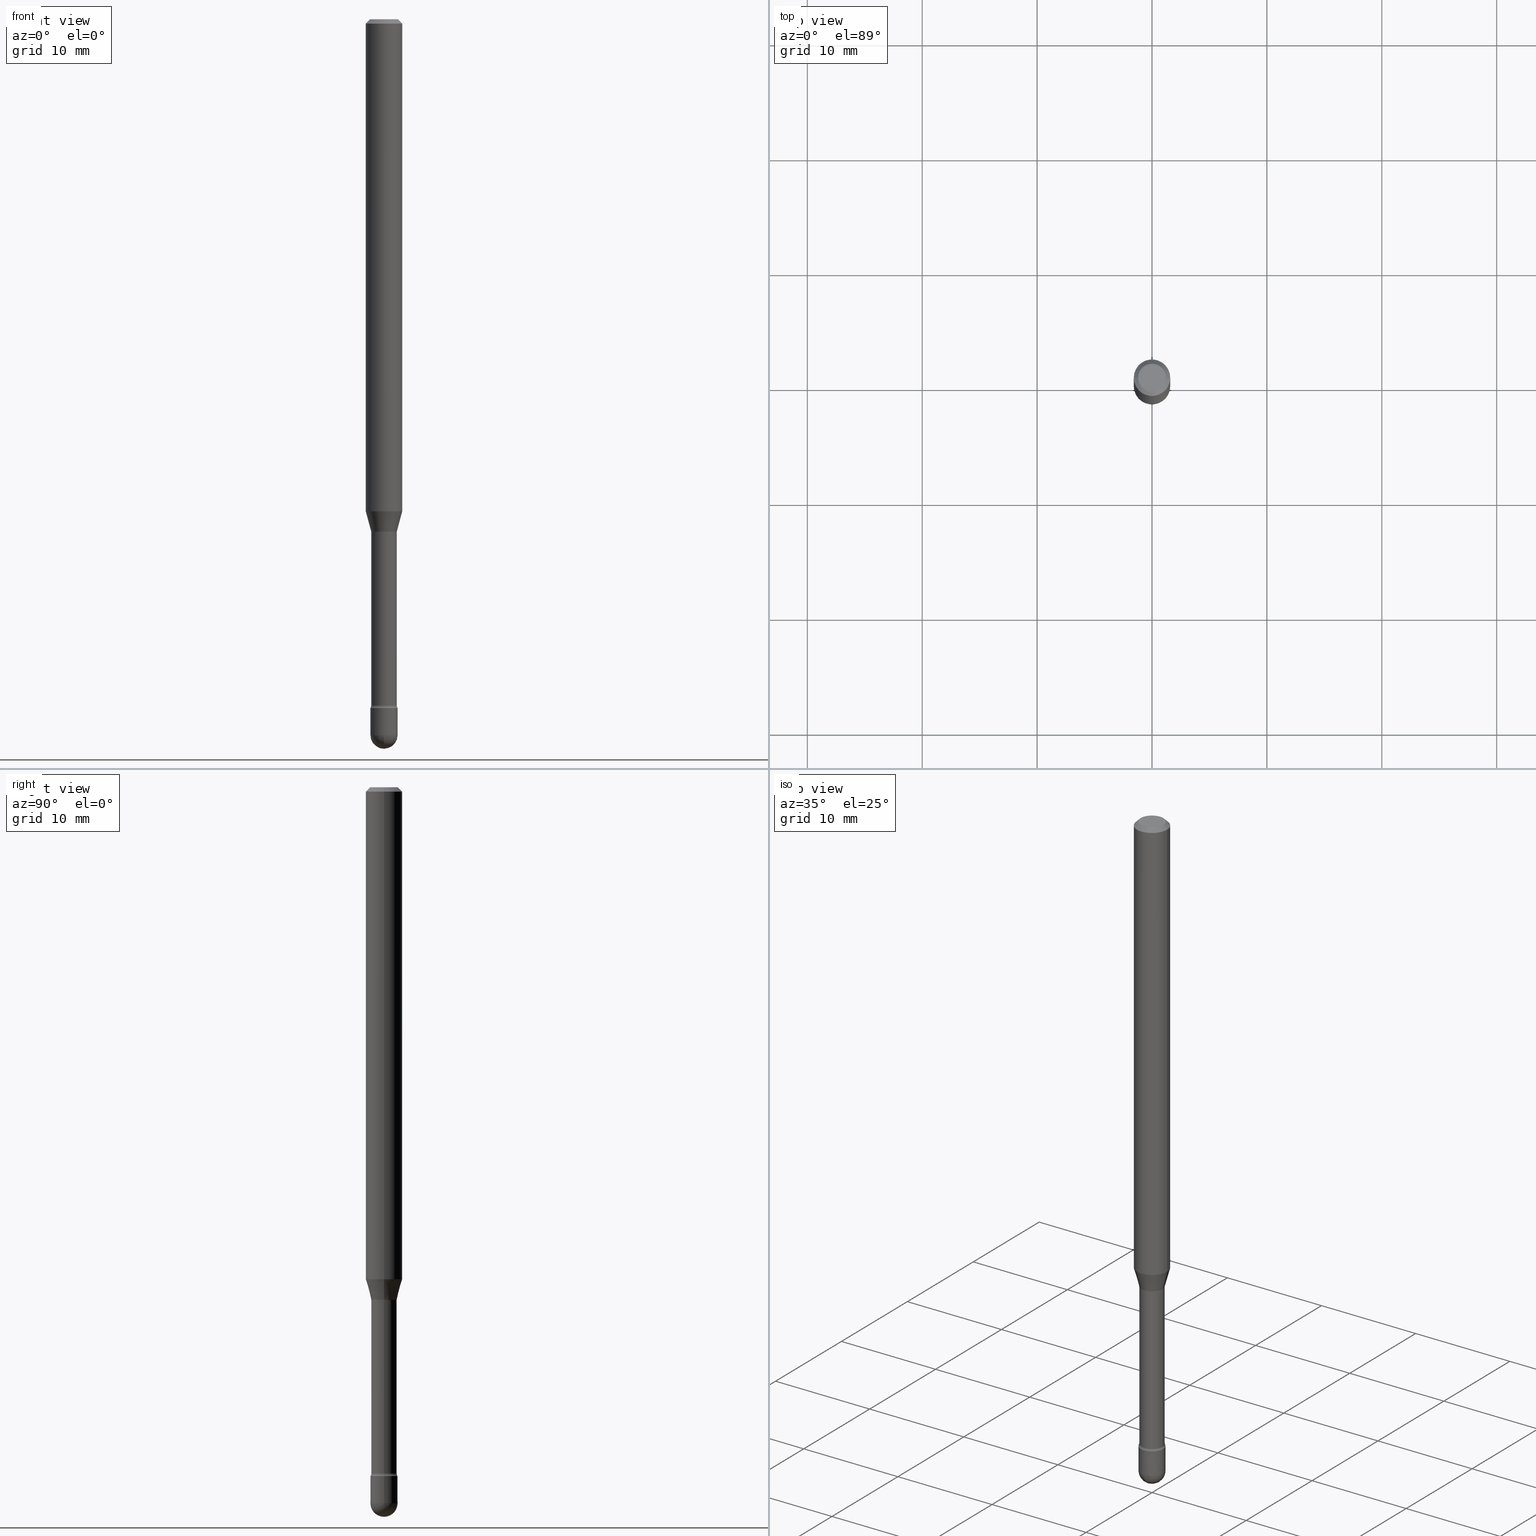
[diagram: canonical four-view strip — front | top / right | iso, engineering-drawing reading convention]
A machine part, canonical four-view strip (front | top / right | iso — engineering-drawing reading convention). The complete STEP part file that produces these views, byte-faithful:
ISO-10303-21;
HEADER;
FILE_DESCRIPTION (( 'STEP AP203' ),
    '1' );
FILE_NAME ('09559.STEP',
    '2024-04-10T00:43:55',
    ( '' ),
    ( '' ),
    'SwSTEP 2.0',
    'SolidWorks 2023',
    '' );
FILE_SCHEMA (( 'CONFIG_CONTROL_DESIGN' ));
ENDSEC;

DATA;
#1 = CIRCLE ( 'NONE', #83, 0.04370000000000000273 ) ;
#2 = AXIS2_PLACEMENT_3D ( 'NONE', #340, #100, #208 ) ;
#3 =( LENGTH_UNIT ( ) NAMED_UNIT ( * ) SI_UNIT ( $, .METRE. ) );
#4 = DIRECTION ( 'NONE',  ( -0.2588190451025213501, 5.211531920934551042E-15, 0.9659258262890682012 ) ) ;
#5 = DIRECTION ( 'NONE',  ( -2.445468806185136877E-29, 3.491481338843145188E-15, 1.000000000000000000 ) ) ;
#6 =( NAMED_UNIT ( * ) PLANE_ANGLE_UNIT ( ) SI_UNIT ( $, .RADIAN. ) );
#7 = DIRECTION ( 'NONE',  ( 1.000000000000000000, -6.982962677686271444E-15, 0.000000000000000000 ) ) ;
#8 = AXIS2_PLACEMENT_3D ( 'NONE', #351, #261, #257 ) ;
#9 = CARTESIAN_POINT ( 'NONE',  ( 0.06250000000000000000, -4.888073874380391431E-16, -0.01500000000000008271 ) ) ;
#10 = DIRECTION ( 'NONE',  ( 1.000000000000000000, -6.982962677686266711E-15, 4.852736867747366207E-29 ) ) ;
#11 = ORIENTED_EDGE ( 'NONE', *, *, #174, .T. ) ;
#12 = APPROVAL_ROLE ( '' ) ;
#13 = EDGE_CURVE ( 'NONE', #542, #25, #36, .T. ) ;
#14 = FACE_OUTER_BOUND ( 'NONE', #120, .T. ) ;
#15 = PERSON_AND_ORGANIZATION ( #377, #63 ) ;
#16 = FACE_OUTER_BOUND ( 'NONE', #164, .T. ) ;
#17 = ORIENTED_EDGE ( 'NONE', *, *, #90, .F. ) ;
#18 = AXIS2_PLACEMENT_3D ( 'NONE', #30, #506, #262 ) ;
#19 = ORIENTED_EDGE ( 'NONE', *, *, #13, .F. ) ;
#20 = CARTESIAN_POINT ( 'NONE',  ( 5.771306382596922099E-29, -8.239895959669823433E-15, -2.359999999999999876 ) ) ;
#21 = DATE_AND_TIME ( #103, #72 ) ;
#22 = FACE_OUTER_BOUND ( 'NONE', #107, .T. ) ;
#23 = EDGE_CURVE ( 'NONE', #381, #488, #504, .T. ) ;
#24 = DIRECTION ( 'NONE',  ( 1.000000000000000000, -6.982962677686272233E-15, 4.883557194083115143E-29 ) ) ;
#25 = VERTEX_POINT ( 'NONE', #429 ) ;
#26 = ORIENTED_EDGE ( 'NONE', *, *, #160, .F. ) ;
#27 = CARTESIAN_POINT ( 'NONE',  ( 0.06250000000000000000, -4.811533449433681963E-16, -0.01500000000000008271 ) ) ;
#28 = CIRCLE ( 'NONE', #350, 0.04749999999999999362 ) ;
#29 = EDGE_CURVE ( 'NONE', #223, #136, #531, .T. ) ;
#30 = CARTESIAN_POINT ( 'NONE',  ( 4.299072504802695232E-29, -6.137936164586641226E-15, -1.757974787463811195 ) ) ;
#31 = ORIENTED_EDGE ( 'NONE', *, *, #362, .F. ) ;
#32 = CARTESIAN_POINT ( 'NONE',  ( -0.04749999999999999362, 3.578768372314208041E-16, -8.274703207154778150E-17 ) ) ;
#33 = ADVANCED_FACE ( 'NONE', ( #301 ), #135, .T. ) ;
#34 = ORIENTED_EDGE ( 'NONE', *, *, #378, .F. ) ;
#35 = LOCAL_TIME ( 20, 43, 55.00000000000000000, #293 ) ;
#36 = CIRCLE ( 'NONE', #73, 0.04370000000000009294 ) ;
#37 = CIRCLE ( 'NONE', #137, 0.04649999999999999967 ) ;
#38 = DIRECTION ( 'NONE',  ( 1.000000000000000000, -6.982962677686271444E-15, 0.000000000000000000 ) ) ;
#39 = LINE ( 'NONE', #140, #505 ) ;
#40 = ORIENTED_EDGE ( 'NONE', *, *, #445, .T. ) ;
#41 = AXIS2_PLACEMENT_3D ( 'NONE', #453, #425, #157 ) ;
#42 = VECTOR ( 'NONE', #343, 39.37007874015748143 ) ;
#43 = CARTESIAN_POINT ( 'NONE',  ( -0.04421111260566398804, -5.810242387576687028E-15, -1.754092501787273273 ) ) ;
#44 = DIRECTION ( 'NONE',  ( -2.445468806185136597E-29, 3.491481338843145583E-15, 1.000000000000000000 ) ) ;
#45 = EDGE_CURVE ( 'NONE', #344, #462, #359, .T. ) ;
#46 = VERTEX_POINT ( 'NONE', #176 ) ;
#47 = MECHANICAL_CONTEXT ( 'NONE', #207, 'mechanical' ) ;
#48 = CARTESIAN_POINT ( 'NONE',  ( 5.999957715975233376E-29, -8.566349464851658011E-15, -2.453500000000000014 ) ) ;
#49 = DIRECTION ( 'NONE',  ( 1.000000000000000000, -6.982962677686267499E-15, 4.884662768193073002E-29 ) ) ;
#50 = AXIS2_PLACEMENT_3D ( 'NONE', #566, #182, #357 ) ;
#51 = CALENDAR_DATE ( 2024, 9, 4 ) ;
#52 = CIRCLE ( 'NONE', #116, 0.01499999999999991618 ) ;
#53 = AXIS2_PLACEMENT_3D ( 'NONE', #346, #476, #510 ) ;
#54 = DIRECTION ( 'NONE',  ( 1.000000000000000000, -6.982962677686266711E-15, 4.852736867747366207E-29 ) ) ;
#55 = ORIENTED_EDGE ( 'NONE', *, *, #268, .T. ) ;
#56 = EDGE_CURVE ( 'NONE', #422, #46, #431, .T. ) ;
#57 = DIRECTION ( 'NONE',  ( 1.000000000000000000, -6.982962677686260400E-15, 0.000000000000000000 ) ) ;
#58 = DIRECTION ( 'NONE',  ( 1.000000000000000000, -6.982962677686266711E-15, 4.858289198259657046E-29 ) ) ;
#59 = PERSON_AND_ORGANIZATION_ROLE ( 'classification_officer' ) ;
#60 = CYLINDRICAL_SURFACE ( 'NONE', #41, 0.04370000000000005130 ) ;
#61 = VERTEX_POINT ( 'NONE', #545 ) ;
#62 = APPROVAL_ROLE ( '' ) ;
#63 = ORGANIZATION ( 'UNSPECIFIED', 'UNSPECIFIED', '' ) ;
#64 = DIRECTION ( 'NONE',  ( 1.000000000000000000, -6.982962677686265922E-15, 4.876176775795935793E-29 ) ) ;
#65 = AXIS2_PLACEMENT_3D ( 'NONE', #285, #191, #49 ) ;
#66 = VECTOR ( 'NONE', #307, 39.37007874015748143 ) ;
#67 = DIRECTION ( 'NONE',  ( 1.000000000000000000, -6.982962677686267499E-15, 4.884662768193073002E-29 ) ) ;
#68 = DIRECTION ( 'NONE',  ( 1.000000000000000000, -6.982962677686260400E-15, 0.000000000000000000 ) ) ;
#69 = ORIENTED_EDGE ( 'NONE', *, *, #56, .F. ) ;
#70 = DIRECTION ( 'NONE',  ( -2.445468806185136597E-29, 3.491481338843145583E-15, 1.000000000000000000 ) ) ;
#71 = DIRECTION ( 'NONE',  ( 1.000000000000000000, -6.982962677686260400E-15, 0.000000000000000000 ) ) ;
#72 = LOCAL_TIME ( 20, 43, 55.00000000000000000, #450 ) ;
#73 = AXIS2_PLACEMENT_3D ( 'NONE', #125, #452, #7 ) ;
#74 = ORIENTED_EDGE ( 'NONE', *, *, #167, .F. ) ;
#75 = AXIS2_PLACEMENT_3D ( 'NONE', #109, #192, #64 ) ;
#76 = ORIENTED_EDGE ( 'NONE', *, *, #555, .T. ) ;
#77 = AXIS2_PLACEMENT_3D ( 'NONE', #338, #281, #241 ) ;
#78 = ORIENTED_EDGE ( 'NONE', *, *, #131, .T. ) ;
#79 = DIRECTION ( 'NONE',  ( 1.000000000000000000, -6.982962677686266711E-15, 0.000000000000000000 ) ) ;
#80 = ORIENTED_EDGE ( 'NONE', *, *, #56, .T. ) ;
#81 = CARTESIAN_POINT ( 'NONE',  ( 5.749964850443326902E-29, -8.209425907846575104E-15, -2.351273030308291823 ) ) ;
#82 = DIRECTION ( 'NONE',  ( 1.000000000000000000, -6.982962677686262766E-15, 0.000000000000000000 ) ) ;
#83 = AXIS2_PLACEMENT_3D ( 'NONE', #288, #179, #264 ) ;
#84 = VERTEX_POINT ( 'NONE', #451 ) ;
#85 = CIRCLE ( 'NONE', #458, 0.06250000000000000000 ) ;
#86 = CARTESIAN_POINT ( 'NONE',  ( 5.999957715975233376E-29, -8.566349464851658011E-15, -2.453500000000000014 ) ) ;
#87 = ADVANCED_FACE ( 'NONE', ( #256 ), #168, .T. ) ;
#88 = ORIENTED_EDGE ( 'NONE', *, *, #539, .F. ) ;
#89 = ORIENTED_EDGE ( 'NONE', *, *, #23, .F. ) ;
#90 = EDGE_CURVE ( 'NONE', #544, #61, #1, .T. ) ;
#91 = LENGTH_MEASURE_WITH_UNIT ( LENGTH_MEASURE( 0.02539999999999999897 ), #3 );
#92 = LOCAL_TIME ( 20, 43, 55.00000000000000000, #460 ) ;
#93 = AXIS2_PLACEMENT_3D ( 'NONE', #367, #146, #54 ) ;
#94 = CC_DESIGN_PERSON_AND_ORGANIZATION_ASSIGNMENT ( #417, #97, ( #134 ) ) ;
#95 = LINE ( 'NONE', #318, #470 ) ;
#96 = ORIENTED_EDGE ( 'NONE', *, *, #352, .F. ) ;
#97 = PERSON_AND_ORGANIZATION_ROLE ( 'creator' ) ;
#98 = ORIENTED_EDGE ( 'NONE', *, *, #309, .F. ) ;
#99 = COORDINATED_UNIVERSAL_TIME_OFFSET ( 5, 0, .BEHIND. ) ;
#100 = DIRECTION ( 'NONE',  ( -1.000000000000000000, 6.982962677686265922E-15, -4.883557194083111780E-29 ) ) ;
#101 = ORIENTED_EDGE ( 'NONE', *, *, #319, .F. ) ;
#102 = APPROVAL ( #201, 'UNSPECIFIED' ) ;
#103 = CALENDAR_DATE ( 2024, 9, 4 ) ;
#104 = AXIS2_PLACEMENT_3D ( 'NONE', #387, #553, #141 ) ;
#105 = TOROIDAL_SURFACE ( 'NONE', #142, 0.05870000000000000218, 0.01500000000000002373 ) ;
#106 = PLANE ( 'NONE',  #75 ) ;
#107 = EDGE_LOOP ( 'NONE', ( #172, #40, #31, #96 ) ) ;
#108 = PERSON_AND_ORGANIZATION ( #377, #63 ) ;
#109 = CARTESIAN_POINT ( 'NONE',  ( 5.771306382596922099E-29, -8.239895959669823433E-15, -2.359999999999999876 ) ) ;
#110 = ORIENTED_EDGE ( 'NONE', *, *, #29, .T. ) ;
#111 = EDGE_CURVE ( 'NONE', #84, #436, #296, .T. ) ;
#112 = CALENDAR_DATE ( 2024, 9, 4 ) ;
#113 = CARTESIAN_POINT ( 'NONE',  ( 0.04421111260566398804, -6.433105785859287344E-15, -1.754092501787273273 ) ) ;
#114 = ADVANCED_FACE ( 'NONE', ( #408 ), #252, .T. ) ;
#115 = DIRECTION ( 'NONE',  ( 1.000000000000000000, -6.982962677686263555E-15, 0.000000000000000000 ) ) ;
#116 = AXIS2_PLACEMENT_3D ( 'NONE', #537, #240, #533 ) ;
#117 = CIRCLE ( 'NONE', #202, 0.04649999999999999967 ) ;
#118 = ORIENTED_EDGE ( 'NONE', *, *, #23, .T. ) ;
#119 = DIRECTION ( 'NONE',  ( 2.438088387897960049E-29, -3.491481338843145188E-15, -1.000000000000000000 ) ) ;
#120 = EDGE_LOOP ( 'NONE', ( #456, #76, #521, #69 ) ) ;
#121 = CARTESIAN_POINT ( 'NONE',  ( 4.289578496284022490E-29, -6.124381236594950640E-15, -1.754092501787273273 ) ) ;
#122 = EDGE_CURVE ( 'NONE', #25, #136, #52, .T. ) ;
#123 = DIRECTION ( 'NONE',  ( -2.445468806185136597E-29, 3.491481338843145583E-15, 1.000000000000000000 ) ) ;
#124 = AXIS2_PLACEMENT_3D ( 'NONE', #411, #291, #10 ) ;
#125 = CARTESIAN_POINT ( 'NONE',  ( 5.749964850443326902E-29, -8.209425907846575104E-15, -2.351273030308291823 ) ) ;
#126 = CARTESIAN_POINT ( 'NONE',  ( 3.668203209277725232E-31, -5.237222008264747365E-17, -0.01500000000000008271 ) ) ;
#127 = VERTEX_POINT ( 'NONE', #418 ) ;
#128 = VERTEX_POINT ( 'NONE', #541 ) ;
#129 = PRODUCT ( '09559', '09559', '', ( #47 ) ) ;
#130 = EDGE_LOOP ( 'NONE', ( #492, #19, #148, #110 ) ) ;
#131 = EDGE_CURVE ( 'NONE', #61, #544, #439, .T. ) ;
#132 = DIRECTION ( 'NONE',  ( -2.445468806185136597E-29, 3.491481338843145583E-15, 1.000000000000000000 ) ) ;
#133 = DIRECTION ( 'NONE',  ( 1.000000000000000000, -6.982962677686263555E-15, 0.000000000000000000 ) ) ;
#134 = PRODUCT_DEFINITION ( 'UNKNOWN', '', #373, #156 ) ;
#135 = CONICAL_SURFACE ( 'NONE', #104, 0.04421111260566398804, 0.2617993877991500740 ) ;
#136 = VERTEX_POINT ( 'NONE', #376 ) ;
#137 = AXIS2_PLACEMENT_3D ( 'NONE', #535, #210, #433 ) ;
#138 = CARTESIAN_POINT ( 'NONE',  ( 0.04370000000000005130, -3.051554690148885367E-16, 4.780733988912481833E-16 ) ) ;
#139 = ADVANCED_FACE ( 'NONE', ( #282 ), #60, .T. ) ;
#140 = CARTESIAN_POINT ( 'NONE',  ( -0.04370000000000005130, 3.105071755271658714E-16, 4.780733988912439432E-16 ) ) ;
#141 = DIRECTION ( 'NONE',  ( 1.000000000000000000, -6.982962677686263555E-15, 0.000000000000000000 ) ) ;
#142 = AXIS2_PLACEMENT_3D ( 'NONE', #187, #446, #396 ) ;
#143 = APPROVAL_STATUS ( 'not_yet_approved' ) ;
#144 = ORIENTED_EDGE ( 'NONE', *, *, #319, .T. ) ;
#145 = APPROVAL_DATE_TIME ( #369, #102 ) ;
#146 = DIRECTION ( 'NONE',  ( -2.445468806185136597E-29, 3.491481338843145583E-15, 1.000000000000000000 ) ) ;
#147 = ORIENTED_EDGE ( 'NONE', *, *, #395, .T. ) ;
#148 = ORIENTED_EDGE ( 'NONE', *, *, #315, .T. ) ;
#149 = PERSON_AND_ORGANIZATION_ROLE ( 'creator' ) ;
#150 = DIRECTION ( 'NONE',  ( 1.000000000000000000, -6.982962677686259611E-15, 0.000000000000000000 ) ) ;
#151 = DATE_AND_TIME ( #466, #35 ) ;
#152 = AXIS2_PLACEMENT_3D ( 'NONE', #126, #123, #79 ) ;
#153 = LOCAL_TIME ( 20, 43, 55.00000000000000000, #366 ) ;
#154 = DIRECTION ( 'NONE',  ( 6.982962677686265922E-15, 1.000000000000000000, -5.874941921858636379E-15 ) ) ;
#155 = EDGE_LOOP ( 'NONE', ( #80, #259, #384, #355, #55 ) ) ;
#156 = DESIGN_CONTEXT ( 'detailed design', #330, 'design' ) ;
#157 = DIRECTION ( 'NONE',  ( 1.000000000000000000, -6.982962677686266711E-15, 4.858289198259657046E-29 ) ) ;
#158 = APPROVAL ( #143, 'UNSPECIFIED' ) ;
#159 = DIRECTION ( 'NONE',  ( 1.000000000000000000, -6.982962677686280121E-15, 0.000000000000000000 ) ) ;
#160 = EDGE_CURVE ( 'NONE', #562, #61, #457, .T. ) ;
#161 = LINE ( 'NONE', #27, #42 ) ;
#162 = AXIS2_PLACEMENT_3D ( 'NONE', #398, #228, #133 ) ;
#163 = CARTESIAN_POINT ( 'NONE',  ( 4.122662883600555440E-29, -5.886069978904029842E-15, -1.685837444817705366 ) ) ;
#164 = EDGE_LOOP ( 'NONE', ( #243, #322 ) ) ;
#165 = DIMENSIONAL_EXPONENTS ( 1.000000000000000000, 0.000000000000000000, 0.000000000000000000, 0.000000000000000000, 0.000000000000000000, 0.000000000000000000, 0.000000000000000000 ) ;
#166 = DIRECTION ( 'NONE',  ( 1.000000000000000000, -6.982962677686263555E-15, 0.000000000000000000 ) ) ;
#167 = EDGE_CURVE ( 'NONE', #46, #344, #543, .T. ) ;
#168 = CYLINDRICAL_SURFACE ( 'NONE', #185, 0.04649999999999999967 ) ;
#169 = DIRECTION ( 'NONE',  ( -2.445468806185136877E-29, 3.491481338843145188E-15, 1.000000000000000000 ) ) ;
#170 = EDGE_LOOP ( 'NONE', ( #101, #89, #474, #204 ) ) ;
#171 = DIRECTION ( 'NONE',  ( -2.445468806185136597E-29, 3.491481338843145583E-15, 1.000000000000000000 ) ) ;
#172 = ORIENTED_EDGE ( 'NONE', *, *, #111, .T. ) ;
#173 = AXIS2_PLACEMENT_3D ( 'NONE', #232, #132, #563 ) ;
#174 = EDGE_CURVE ( 'NONE', #409, #508, #512, .T. ) ;
#175 = FACE_OUTER_BOUND ( 'NONE', #130, .T. ) ;
#176 = CARTESIAN_POINT ( 'NONE',  ( -0.04649999999999999967, -8.072720340132295025E-15, -2.453500000000000014 ) ) ;
#177 = CC_DESIGN_PERSON_AND_ORGANIZATION_ASSIGNMENT ( #198, #59, ( #390 ) ) ;
#178 = CARTESIAN_POINT ( 'NONE',  ( 4.122662883600555440E-29, -5.886069978904029842E-15, -1.685837444817705366 ) ) ;
#179 = DIRECTION ( 'NONE',  ( -2.445468806185136597E-29, 3.491481338843145583E-15, 1.000000000000000000 ) ) ;
#180 = EDGE_LOOP ( 'NONE', ( #74, #221, #11, #206, #419 ) ) ;
#181 = ORIENTED_EDGE ( 'NONE', *, *, #268, .F. ) ;
#182 = DIRECTION ( 'NONE',  ( -1.000000000000000000, 7.105427357601001070E-15, -4.926315508542082329E-29 ) ) ;
#183 = ADVANCED_FACE ( 'NONE', ( #421 ), #499, .T. ) ;
#184 = APPROVAL_PERSON_ORGANIZATION ( #375, #102, #62 ) ;
#185 = AXIS2_PLACEMENT_3D ( 'NONE', #302, #478, #233 ) ;
#186 = CONICAL_SURFACE ( 'NONE', #162, 0.04421111260566398804, 0.2617993877991500740 ) ;
#187 = CARTESIAN_POINT ( 'NONE',  ( 4.299072504802695232E-29, -6.137936164586641226E-15, -1.757974787463811195 ) ) ;
#188 = DIRECTION ( 'NONE',  ( 1.000000000000000000, -6.982962677686262766E-15, 0.000000000000000000 ) ) ;
#189 = CARTESIAN_POINT ( 'NONE',  ( -0.06250000000000000000, -5.441980769053966437E-15, -1.685837444817705366 ) ) ;
#190 = VECTOR ( 'NONE', #444, 39.37007874015748143 ) ;
#191 = DIRECTION ( 'NONE',  ( -2.445468806185136597E-29, 3.491481338843145583E-15, 1.000000000000000000 ) ) ;
#192 = DIRECTION ( 'NONE',  ( -2.438088387897960049E-29, 3.491481338843145188E-15, 1.000000000000000000 ) ) ;
#193 = ADVANCED_FACE ( 'NONE', ( #22 ), #195, .T. ) ;
#194 = APPROVAL_DATE_TIME ( #325, #158 ) ;
#195 = CYLINDRICAL_SURFACE ( 'NONE', #124, 0.06250000000000000000 ) ;
#196 = ORIENTED_EDGE ( 'NONE', *, *, #174, .F. ) ;
#197 = CARTESIAN_POINT ( 'NONE',  ( 5.999957715975233376E-29, -8.566349464851658011E-15, -2.453500000000000014 ) ) ;
#198 = PERSON_AND_ORGANIZATION ( #377, #63 ) ;
#199 = CARTESIAN_POINT ( 'NONE',  ( 5.999957715975233376E-29, -8.566349464851658011E-15, -2.453500000000000014 ) ) ;
#200 = ADVANCED_FACE ( 'NONE', ( #14 ), #502, .T. ) ;
#201 = APPROVAL_STATUS ( 'not_yet_approved' ) ;
#202 = AXIS2_PLACEMENT_3D ( 'NONE', #345, #70, #71 ) ;
#203 = CARTESIAN_POINT ( 'NONE',  ( 4.299072504802695232E-29, -6.137936164586641226E-15, -1.757974787463811195 ) ) ;
#204 = ORIENTED_EDGE ( 'NONE', *, *, #378, .T. ) ;
#205 = CC_DESIGN_PERSON_AND_ORGANIZATION_ASSIGNMENT ( #15, #454, ( #129 ) ) ;
#206 = ORIENTED_EDGE ( 'NONE', *, *, #426, .T. ) ;
#207 = APPLICATION_CONTEXT ( 'configuration controlled 3d designs of mechanical parts and assemblies' ) ;
#208 = DIRECTION ( 'NONE',  ( 6.982962677686265922E-15, 1.000000000000000000, -5.874941921858636379E-15 ) ) ;
#209 = ORIENTED_EDGE ( 'NONE', *, *, #287, .F. ) ;
#210 = DIRECTION ( 'NONE',  ( -2.445468806185136597E-29, 3.491481338843145583E-15, 1.000000000000000000 ) ) ;
#211 = ADVANCED_FACE ( 'NONE', ( #455 ), #503, .T. ) ;
#212 = AXIS2_PLACEMENT_3D ( 'NONE', #528, #490, #442 ) ;
#213 = DIRECTION ( 'NONE',  ( 1.000000000000000000, -6.982962677686242256E-15, 0.000000000000000000 ) ) ;
#214 = ORIENTED_EDGE ( 'NONE', *, *, #160, .T. ) ;
#215 = CARTESIAN_POINT ( 'NONE',  ( 3.316907271900976096E-16, 0.04749999999999999362, 3.181781981480094004E-17 ) ) ;
#216 = EDGE_CURVE ( 'NONE', #562, #84, #496, .T. ) ;
#217 = VERTEX_POINT ( 'NONE', #9 ) ;
#218 = DIRECTION ( 'NONE',  ( -2.438088387897960049E-29, 3.491481338843145188E-15, 1.000000000000000000 ) ) ;
#219 = AXIS2_PLACEMENT_3D ( 'NONE', #481, #267, #68 ) ;
#220 = CIRCLE ( 'NONE', #441, 0.04649999999999999967 ) ;
#221 = ORIENTED_EDGE ( 'NONE', *, *, #459, .T. ) ;
#222 = LINE ( 'NONE', #407, #448 ) ;
#223 = VERTEX_POINT ( 'NONE', #468 ) ;
#224 = ORIENTED_EDGE ( 'NONE', *, *, #90, .T. ) ;
#225 = DIRECTION ( 'NONE',  ( -2.445468806185136597E-29, 3.491481338843145583E-15, 1.000000000000000000 ) ) ;
#226 = DIRECTION ( 'NONE',  ( 1.000000000000000000, -6.982962677686280121E-15, 0.000000000000000000 ) ) ;
#227 = ADVANCED_FACE ( 'NONE', ( #16 ), #106, .T. ) ;
#228 = DIRECTION ( 'NONE',  ( -2.445468806185136597E-29, 3.491481338843145583E-15, 1.000000000000000000 ) ) ;
#229 = APPROVAL_PERSON_ORGANIZATION ( #334, #158, #12 ) ;
#230 = CLOSED_SHELL ( 'NONE', ( #327, #114, #386, #467, #193, #530, #33, #211, #324, #280, #299, #305, #139, #406 ) ) ;
#231 = AXIS2_PLACEMENT_3D ( 'NONE', #298, #251, #473 ) ;
#232 = CARTESIAN_POINT ( 'NONE',  ( 5.771306382596922099E-29, -8.239895959669823433E-15, -2.359999999999999876 ) ) ;
#233 = DIRECTION ( 'NONE',  ( 1.000000000000000000, -6.982962677686267499E-15, 4.876176775795936353E-29 ) ) ;
#234 = CARTESIAN_POINT ( 'NONE',  ( 0.04649999999999999967, -8.727830476773153796E-15, -2.453500000000000014 ) ) ;
#235 = ORIENTED_EDGE ( 'NONE', *, *, #525, .F. ) ;
#236 = APPROVAL_STATUS ( 'not_yet_approved' ) ;
#237 = CARTESIAN_POINT ( 'NONE',  ( 0.000000000000000000, 0.000000000000000000, 0.000000000000000000 ) ) ;
#238 = AXIS2_PLACEMENT_3D ( 'NONE', #215, #119, #551 ) ;
#239 = PERSON_AND_ORGANIZATION ( #377, #63 ) ;
#240 = DIRECTION ( 'NONE',  ( 7.105427357601001859E-15, 1.000000000000000000, -3.491481338843145583E-15 ) ) ;
#241 = DIRECTION ( 'NONE',  ( 1.000000000000000000, 0.000000000000000000, 0.000000000000000000 ) ) ;
#242 = SPHERICAL_SURFACE ( 'NONE', #497, 0.04649999999999995109 ) ;
#243 = ORIENTED_EDGE ( 'NONE', *, *, #413, .T. ) ;
#244 = CALENDAR_DATE ( 2024, 9, 4 ) ;
#245 = ADVANCED_FACE ( 'NONE', ( #493 ), #242, .T. ) ;
#246 = DIRECTION ( 'NONE',  ( -2.445468806185136877E-29, 3.491481338843145188E-15, 1.000000000000000000 ) ) ;
#247 = PRODUCT_DEFINITION_SHAPE ( 'NONE', 'NONE',  #134 ) ;
#248 = APPLICATION_PROTOCOL_DEFINITION ( 'international standard', 'config_control_design', 1994, #330 ) ;
#249 = AXIS2_PLACEMENT_3D ( 'NONE', #388, #546, #213 ) ;
#250 = DIRECTION ( 'NONE',  ( -2.445468806185136597E-29, 3.491481338843145583E-15, 1.000000000000000000 ) ) ;
#251 = DIRECTION ( 'NONE',  ( 2.445468806185136597E-29, -3.491481338843145583E-15, -1.000000000000000000 ) ) ;
#252 = CYLINDRICAL_SURFACE ( 'NONE', #306, 0.04370000000000005130 ) ;
#253 = FACE_OUTER_BOUND ( 'NONE', #260, .T. ) ;
#254 = EDGE_LOOP ( 'NONE', ( #209, #269, #214, #78 ) ) ;
#255 = CC_DESIGN_PERSON_AND_ORGANIZATION_ASSIGNMENT ( #279, #329, ( #373 ) ) ;
#256 = FACE_OUTER_BOUND ( 'NONE', #155, .T. ) ;
#257 = DIRECTION ( 'NONE',  ( -1.000000000000000000, 7.105427357600982137E-15, 0.000000000000000000 ) ) ;
#258 = TOROIDAL_SURFACE ( 'NONE', #316, 0.05870000000000000911, 0.01499999999999991618 ) ;
#259 = ORIENTED_EDGE ( 'NONE', *, *, #167, .T. ) ;
#260 = EDGE_LOOP ( 'NONE', ( #118, #434 ) ) ;
#261 = DIRECTION ( 'NONE',  ( 7.105427357601001859E-15, 1.000000000000000000, -3.491481338843145583E-15 ) ) ;
#262 = DIRECTION ( 'NONE',  ( 1.000000000000000000, -6.982962677686263555E-15, 4.883557194083111780E-29 ) ) ;
#263 = CC_DESIGN_DATE_AND_TIME_ASSIGNMENT ( #151, #424, ( #134 ) ) ;
#264 = DIRECTION ( 'NONE',  ( 1.000000000000000000, -6.982962677686263555E-15, 0.000000000000000000 ) ) ;
#265 = CARTESIAN_POINT ( 'NONE',  ( 5.749964850443326902E-29, -8.209425907846575104E-15, -2.351273030308291823 ) ) ;
#266 = CIRCLE ( 'NONE', #556, 0.04649999999999995109 ) ;
#267 = DIRECTION ( 'NONE',  ( -2.445468806185136597E-29, 3.491481338843145583E-15, 1.000000000000000000 ) ) ;
#268 = EDGE_CURVE ( 'NONE', #508, #422, #37, .T. ) ;
#269 = ORIENTED_EDGE ( 'NONE', *, *, #501, .F. ) ;
#270 = EDGE_LOOP ( 'NONE', ( #275, #147, #292, #520 ) ) ;
#271 = DIRECTION ( 'NONE',  ( 6.982962677686265133E-15, 1.000000000000000000, 0.000000000000000000 ) ) ;
#272 = ORIENTED_EDGE ( 'NONE', *, *, #122, .T. ) ;
#273 = EDGE_CURVE ( 'NONE', #136, #223, #117, .T. ) ;
#274 = CARTESIAN_POINT ( 'NONE',  ( 0.04649999999999999967, -8.564603724182234141E-15, -2.359999999999999876 ) ) ;
#275 = ORIENTED_EDGE ( 'NONE', *, *, #501, .T. ) ;
#276 = DIRECTION ( 'NONE',  ( -2.445468806185136877E-29, 3.491481338843145188E-15, 1.000000000000000000 ) ) ;
#277 = ADVANCED_BREP_SHAPE_REPRESENTATION ( '09559', ( #561, #370, #77 ), #321 ) ;
#278 = LINE ( 'NONE', #138, #190 ) ;
#279 = PERSON_AND_ORGANIZATION ( #377, #63 ) ;
#280 = ADVANCED_FACE ( 'NONE', ( #253 ), #437, .F. ) ;
#281 = DIRECTION ( 'NONE',  ( 0.000000000000000000, 0.000000000000000000, 1.000000000000000000 ) ) ;
#282 = FACE_OUTER_BOUND ( 'NONE', #500, .T. ) ;
#283 = ORIENTED_EDGE ( 'NONE', *, *, #315, .F. ) ;
#284 = APPROVAL_ROLE ( '' ) ;
#285 = CARTESIAN_POINT ( 'NONE',  ( 2.023552857353652888E-45, -2.889097183224559242E-31, -8.274703207154537794E-17 ) ) ;
#286 = CARTESIAN_POINT ( 'NONE',  ( 0.05870000000000000218, -6.547836073766825253E-15, -1.757974787463811195 ) ) ;
#287 = EDGE_CURVE ( 'NONE', #128, #544, #323, .T. ) ;
#288 = CARTESIAN_POINT ( 'NONE',  ( 4.299072504802695232E-29, -6.137936164586641226E-15, -1.757974787463811195 ) ) ;
#289 = DIRECTION ( 'NONE',  ( -2.445468806185136597E-29, 3.491481338843145583E-15, 1.000000000000000000 ) ) ;
#290 = DATE_AND_TIME ( #244, #92 ) ;
#291 = DIRECTION ( 'NONE',  ( -2.445468806185136597E-29, 3.491481338843145583E-15, 1.000000000000000000 ) ) ;
#292 = ORIENTED_EDGE ( 'NONE', *, *, #111, .F. ) ;
#293 = COORDINATED_UNIVERSAL_TIME_OFFSET ( 5, 0, .BEHIND. ) ;
#294 = DIRECTION ( 'NONE',  ( 0.2588190451025213501, 1.565188264969621968E-15, 0.9659258262890682012 ) ) ;
#295 = AXIS2_PLACEMENT_3D ( 'NONE', #265, #440, #38 ) ;
#296 = CIRCLE ( 'NONE', #364, 0.06250000000000000000 ) ;
#297 = CONICAL_SURFACE ( 'NONE', #212, 0.06250000000000000000, 0.7853981633974483900 ) ;
#298 = CARTESIAN_POINT ( 'NONE',  ( 3.668203209277725232E-31, -5.237222008264747365E-17, -0.01500000000000008271 ) ) ;
#299 = ADVANCED_FACE ( 'NONE', ( #430 ), #300, .F. ) ;
#300 = PLANE ( 'NONE',  #332 ) ;
#301 = FACE_OUTER_BOUND ( 'NONE', #416, .T. ) ;
#302 = CARTESIAN_POINT ( 'NONE',  ( 0.000000000000000000, 0.000000000000000000, 0.000000000000000000 ) ) ;
#303 = DIRECTION ( 'NONE',  ( -2.445468806185136597E-29, 3.491481338843145583E-15, 1.000000000000000000 ) ) ;
#304 = ORIENTED_EDGE ( 'NONE', *, *, #352, .T. ) ;
#305 = ADVANCED_FACE ( 'NONE', ( #175 ), #258, .F. ) ;
#306 = AXIS2_PLACEMENT_3D ( 'NONE', #464, #326, #58 ) ;
#307 = DIRECTION ( 'NONE',  ( -0.7071067811865475727, 2.468850131082257455E-15, -0.7071067811865474617 ) ) ;
#308 = TOROIDAL_SURFACE ( 'NONE', #18, 0.05870000000000000218, 0.01500000000000002373 ) ;
#309 = EDGE_CURVE ( 'NONE', #128, #562, #491, .T. ) ;
#310 = CARTESIAN_POINT ( 'NONE',  ( -0.06250000000000000000, -2.525131889643276042E-15, -0.01500000000000008271 ) ) ;
#311 = ORIENTED_EDGE ( 'NONE', *, *, #287, .T. ) ;
#312 = ORIENTED_EDGE ( 'NONE', *, *, #131, .F. ) ;
#313 = DIRECTION ( 'NONE',  ( -2.445468806185136597E-29, 3.491481338843145583E-15, 1.000000000000000000 ) ) ;
#314 = CARTESIAN_POINT ( 'NONE',  ( 0.04370000000000009294, -8.514581376861464972E-15, -2.351273030308291823 ) ) ;
#315 = EDGE_CURVE ( 'NONE', #542, #223, #423, .T. ) ;
#316 = AXIS2_PLACEMENT_3D ( 'NONE', #477, #171, #392 ) ;
#317 = FACE_OUTER_BOUND ( 'NONE', #254, .T. ) ;
#318 = CARTESIAN_POINT ( 'NONE',  ( 0.04649999999999999967, -3.247077645124114474E-16, 2.267422200745110326E-30 ) ) ;
#319 = EDGE_CURVE ( 'NONE', #488, #217, #161, .T. ) ;
#320 = DIRECTION ( 'NONE',  ( 1.000000000000000000, -6.982962677686263555E-15, 0.000000000000000000 ) ) ;
#321 =( GEOMETRIC_REPRESENTATION_CONTEXT ( 3 ) GLOBAL_UNCERTAINTY_ASSIGNED_CONTEXT ( ( #335 ) ) GLOBAL_UNIT_ASSIGNED_CONTEXT ( ( #410, #6, #414 ) ) REPRESENTATION_CONTEXT ( 'NONE', 'WORKASPACE' ) );
#322 = ORIENTED_EDGE ( 'NONE', *, *, #45, .T. ) ;
#323 = CIRCLE ( 'NONE', #8, 0.01500000000000001853 ) ;
#324 = ADVANCED_FACE ( 'NONE', ( #383 ), #475, .T. ) ;
#325 = DATE_AND_TIME ( #51, #341 ) ;
#326 = DIRECTION ( 'NONE',  ( -2.445468806185136597E-29, 3.491481338843145583E-15, 1.000000000000000000 ) ) ;
#327 = ADVANCED_FACE ( 'NONE', ( #514 ), #308, .F. ) ;
#328 = DIRECTION ( 'NONE',  ( -2.445468806185136597E-29, 3.491481338843145583E-15, 1.000000000000000000 ) ) ;
#329 = PERSON_AND_ORGANIZATION_ROLE ( 'design_supplier' ) ;
#330 = APPLICATION_CONTEXT ( 'configuration controlled 3d designs of mechanical parts and assemblies' ) ;
#331 = EDGE_CURVE ( 'NONE', #381, #389, #471, .T. ) ;
#332 = AXIS2_PLACEMENT_3D ( 'NONE', #507, #218, #517 ) ;
#333 = AXIS2_PLACEMENT_3D ( 'NONE', #81, #560, #24 ) ;
#334 = PERSON_AND_ORGANIZATION ( #377, #63 ) ;
#335 = UNCERTAINTY_MEASURE_WITH_UNIT (LENGTH_MEASURE( 1.000000000000000082E-05 ), #410, 'distance_accuracy_value', 'NONE');
#336 = DIRECTION ( 'NONE',  ( -2.445468806185136597E-29, 3.491481338843145583E-15, 1.000000000000000000 ) ) ;
#337 = ORIENTED_EDGE ( 'NONE', *, *, #555, .F. ) ;
#338 = CARTESIAN_POINT ( 'NONE',  ( 0.000000000000000000, 0.000000000000000000, 0.000000000000000000 ) ) ;
#339 = CARTESIAN_POINT ( 'NONE',  ( -0.04649999999999999967, 3.304023721284465841E-16, -2.287304816968531530E-30 ) ) ;
#340 = CARTESIAN_POINT ( 'NONE',  ( 5.999957715975233376E-29, -8.566349464851658011E-15, -2.453500000000000014 ) ) ;
#341 = LOCAL_TIME ( 20, 43, 55.00000000000000000, #99 ) ;
#342 = AXIS2_PLACEMENT_3D ( 'NONE', #48, #379, #159 ) ;
#343 = DIRECTION ( 'NONE',  ( 0.7071067811865475727, -7.319954787623256045E-15, -0.7071067811865474617 ) ) ;
#344 = VERTEX_POINT ( 'NONE', #385 ) ;
#345 = CARTESIAN_POINT ( 'NONE',  ( 5.771306382596922099E-29, -8.239895959669823433E-15, -2.359999999999999876 ) ) ;
#346 = CARTESIAN_POINT ( 'NONE',  ( 3.668203209277725232E-31, -5.237222008264747365E-17, -0.01500000000000008271 ) ) ;
#347 = EDGE_LOOP ( 'NONE', ( #394, #465, #312, #536 ) ) ;
#348 = EDGE_CURVE ( 'NONE', #488, #381, #28, .T. ) ;
#349 = LINE ( 'NONE', #428, #360 ) ;
#350 = AXIS2_PLACEMENT_3D ( 'NONE', #435, #552, #67 ) ;
#351 = CARTESIAN_POINT ( 'NONE',  ( -0.05870000000000000218, -5.720847578695462599E-15, -1.757974787463811195 ) ) ;
#352 = EDGE_CURVE ( 'NONE', #84, #217, #349, .T. ) ;
#353 = CARTESIAN_POINT ( 'NONE',  ( 5.999957715975233376E-29, -8.566349464851658011E-15, -2.453500000000000014 ) ) ;
#354 = ORIENTED_EDGE ( 'NONE', *, *, #539, .T. ) ;
#355 = ORIENTED_EDGE ( 'NONE', *, *, #426, .F. ) ;
#356 = CC_DESIGN_APPROVAL ( #102, ( #134 ) ) ;
#357 = DIRECTION ( 'NONE',  ( -7.105427357601001070E-15, -1.000000000000000000, 0.000000000000000000 ) ) ;
#358 = CC_DESIGN_DATE_AND_TIME_ASSIGNMENT ( #21, #498, ( #390 ) ) ;
#359 = CIRCLE ( 'NONE', #219, 0.04649999999999999967 ) ;
#360 = VECTOR ( 'NONE', #169, 39.37007874015748143 ) ;
#361 = FACE_OUTER_BOUND ( 'NONE', #518, .T. ) ;
#362 = EDGE_CURVE ( 'NONE', #217, #389, #559, .T. ) ;
#363 = CARTESIAN_POINT ( 'NONE',  ( 0.04749999999999999362, -4.035134999187581581E-16, -8.274703207154280181E-17 ) ) ;
#364 = AXIS2_PLACEMENT_3D ( 'NONE', #163, #485, #188 ) ;
#365 = AXIS2_PLACEMENT_3D ( 'NONE', #121, #303, #166 ) ;
#366 = COORDINATED_UNIVERSAL_TIME_OFFSET ( 5, 0, .BEHIND. ) ;
#367 = CARTESIAN_POINT ( 'NONE',  ( -1.169113584055446105E-44, 1.669184350826100908E-30, 4.780733988912460139E-16 ) ) ;
#368 = ORIENTED_EDGE ( 'NONE', *, *, #273, .T. ) ;
#369 = DATE_AND_TIME ( #112, #153 ) ;
#370 = MANIFOLD_SOLID_BREP ( 'Body-Move/Copy2[2]', #230 ) ;
#371 = DIRECTION ( 'NONE',  ( -1.000000000000000000, 6.982962677686265922E-15, -4.883557194083111780E-29 ) ) ;
#372 = ORIENTED_EDGE ( 'NONE', *, *, #362, .T. ) ;
#373 = PRODUCT_DEFINITION_FORMATION_WITH_SPECIFIED_SOURCE ( 'ANY', '', #129, .NOT_KNOWN. ) ;
#374 = AXIS2_PLACEMENT_3D ( 'NONE', #203, #336, #115 ) ;
#375 = PERSON_AND_ORGANIZATION ( #377, #63 ) ;
#376 = CARTESIAN_POINT ( 'NONE',  ( -0.04649999999999995803, -7.909493587541378525E-15, -2.359999999999999876 ) ) ;
#377 = PERSON ( 'UNSPECIFIED', 'UNSPECIFIED', 'UNSPECIFIED', ('UNSPECIFIED'), ('UNSPECIFIED'), ('UNSPECIFIED') ) ;
#378 = EDGE_CURVE ( 'NONE', #389, #217, #549, .T. ) ;
#379 = DIRECTION ( 'NONE',  ( -2.445468806185136597E-29, 3.491481338843145583E-15, 1.000000000000000000 ) ) ;
#380 = FACE_OUTER_BOUND ( 'NONE', #527, .T. ) ;
#381 = VERTEX_POINT ( 'NONE', #32 ) ;
#382 = CIRCLE ( 'NONE', #173, 0.04649999999999999967 ) ;
#383 = FACE_OUTER_BOUND ( 'NONE', #170, .T. ) ;
#384 = ORIENTED_EDGE ( 'NONE', *, *, #413, .F. ) ;
#385 = CARTESIAN_POINT ( 'NONE',  ( -0.04649999999999999967, -8.072720340132295025E-15, -2.359999999999999876 ) ) ;
#386 = ADVANCED_FACE ( 'NONE', ( #380 ), #538, .F. ) ;
#387 = CARTESIAN_POINT ( 'NONE',  ( 4.289578496284022490E-29, -6.124381236594950640E-15, -1.754092501787273273 ) ) ;
#388 = CARTESIAN_POINT ( 'NONE',  ( 0.05870000000000000911, -8.619325817026758341E-15, -2.351273030308291823 ) ) ;
#389 = VERTEX_POINT ( 'NONE', #310 ) ;
#390 = SECURITY_CLASSIFICATION ( '', '', #495 ) ;
#391 = AXIS2_PLACEMENT_3D ( 'NONE', #20, #328, #57 ) ;
#392 = DIRECTION ( 'NONE',  ( 1.000000000000000000, -6.982962677686272233E-15, 4.883557194083115143E-29 ) ) ;
#393 = VECTOR ( 'NONE', #4, 39.37007874015747433 ) ;
#394 = ORIENTED_EDGE ( 'NONE', *, *, #13, .T. ) ;
#395 = EDGE_CURVE ( 'NONE', #128, #436, #484, .T. ) ;
#396 = DIRECTION ( 'NONE',  ( 1.000000000000000000, -6.982962677686263555E-15, 4.883557194083111780E-29 ) ) ;
#397 = ORIENTED_EDGE ( 'NONE', *, *, #348, .F. ) ;
#398 = CARTESIAN_POINT ( 'NONE',  ( 4.289578496284022490E-29, -6.124381236594950640E-15, -1.754092501787273273 ) ) ;
#399 = ORIENTED_EDGE ( 'NONE', *, *, #309, .T. ) ;
#400 = CC_DESIGN_APPROVAL ( #158, ( #373 ) ) ;
#401 = CARTESIAN_POINT ( 'NONE',  ( -3.304023721283863841E-16, -0.04650000000000854145, -2.453500000000000014 ) ) ;
#402 = AXIS2_PLACEMENT_3D ( 'NONE', #237, #250, #415 ) ;
#403 = APPROVAL_PERSON_ORGANIZATION ( #108, #565, #284 ) ;
#404 = EDGE_LOOP ( 'NONE', ( #529, #524, #304, #34 ) ) ;
#405 = CARTESIAN_POINT ( 'NONE',  ( 3.247077645124712036E-16, 0.04649999999999141626, -2.453500000000000458 ) ) ;
#406 = ADVANCED_FACE ( 'NONE', ( #317 ), #105, .F. ) ;
#407 = CARTESIAN_POINT ( 'NONE',  ( -0.06250000000000000000, 4.440892098500642925E-16, 4.780733988912429571E-16 ) ) ;
#408 = FACE_OUTER_BOUND ( 'NONE', #347, .T. ) ;
#409 = VERTEX_POINT ( 'NONE', #401 ) ;
#410 =( CONVERSION_BASED_UNIT ( 'INCH', #91 ) LENGTH_UNIT ( ) NAMED_UNIT ( #165 ) );
#411 = CARTESIAN_POINT ( 'NONE',  ( -1.169113584055446105E-44, 1.669184350826100908E-30, 4.780733988912460139E-16 ) ) ;
#412 = CIRCLE ( 'NONE', #295, 0.04370000000000009294 ) ;
#413 = EDGE_CURVE ( 'NONE', #462, #344, #382, .T. ) ;
#414 =( NAMED_UNIT ( * ) SI_UNIT ( $, .STERADIAN. ) SOLID_ANGLE_UNIT ( ) );
#415 = DIRECTION ( 'NONE',  ( 1.000000000000000000, -6.982962677686267499E-15, 4.876176775795936353E-29 ) ) ;
#416 = EDGE_LOOP ( 'NONE', ( #564, #399, #513, #235 ) ) ;
#417 = PERSON_AND_ORGANIZATION ( #377, #63 ) ;
#418 = CARTESIAN_POINT ( 'NONE',  ( 6.115660277085183893E-29, -8.725856043299847054E-15, -2.500000000000000000 ) ) ;
#419 = ORIENTED_EDGE ( 'NONE', *, *, #45, .F. ) ;
#420 = APPLICATION_PROTOCOL_DEFINITION ( 'international standard', 'config_control_design', 1994, #207 ) ;
#421 = FACE_OUTER_BOUND ( 'NONE', #180, .T. ) ;
#422 = VERTEX_POINT ( 'NONE', #405 ) ;
#423 = CIRCLE ( 'NONE', #249, 0.01499999999999991618 ) ;
#424 = DATE_TIME_ROLE ( 'creation_date' ) ;
#425 = DIRECTION ( 'NONE',  ( -2.445468806185136597E-29, 3.491481338843145583E-15, 1.000000000000000000 ) ) ;
#426 = EDGE_CURVE ( 'NONE', #508, #462, #95, .T. ) ;
#427 = ORIENTED_EDGE ( 'NONE', *, *, #480, .T. ) ;
#428 = CARTESIAN_POINT ( 'NONE',  ( 0.06250000000000000000, -4.364351673553899931E-16, 4.780733988912490708E-16 ) ) ;
#429 = CARTESIAN_POINT ( 'NONE',  ( -0.04370000000000009294, -7.904206159930393879E-15, -2.351273030308291823 ) ) ;
#430 = FACE_OUTER_BOUND ( 'NONE', #558, .T. ) ;
#431 = CIRCLE ( 'NONE', #548, 0.04649999999999999967 ) ;
#432 = CIRCLE ( 'NONE', #523, 0.04421111260566398804 ) ;
#433 = DIRECTION ( 'NONE',  ( 1.000000000000000000, -6.982962677686280121E-15, 0.000000000000000000 ) ) ;
#434 = ORIENTED_EDGE ( 'NONE', *, *, #348, .T. ) ;
#435 = CARTESIAN_POINT ( 'NONE',  ( 2.023552857353652888E-45, -2.889097183224559242E-31, -8.274703207154537794E-17 ) ) ;
#436 = VERTEX_POINT ( 'NONE', #189 ) ;
#437 = PLANE ( 'NONE',  #238 ) ;
#438 = CC_DESIGN_APPROVAL ( #565, ( #390 ) ) ;
#439 = CIRCLE ( 'NONE', #374, 0.04370000000000000273 ) ;
#440 = DIRECTION ( 'NONE',  ( -2.445468806185136597E-29, 3.491481338843145583E-15, 1.000000000000000000 ) ) ;
#441 = AXIS2_PLACEMENT_3D ( 'NONE', #353, #225, #526 ) ;
#442 = DIRECTION ( 'NONE',  ( -1.000000000000000000, 6.982962677686266711E-15, 0.000000000000000000 ) ) ;
#443 = EDGE_LOOP ( 'NONE', ( #337, #547, #181, #196 ) ) ;
#444 = DIRECTION ( 'NONE',  ( -2.445468806185136877E-29, 3.491481338843145188E-15, 1.000000000000000000 ) ) ;
#445 = EDGE_CURVE ( 'NONE', #436, #389, #222, .T. ) ;
#446 = DIRECTION ( 'NONE',  ( -2.445468806185136597E-29, 3.491481338843145583E-15, 1.000000000000000000 ) ) ;
#447 = AXIS2_PLACEMENT_3D ( 'NONE', #286, #461, #150 ) ;
#448 = VECTOR ( 'NONE', #479, 39.37007874015748143 ) ;
#449 = CARTESIAN_POINT ( 'NONE',  ( 4.289578496284022490E-29, -6.124381236594950640E-15, -1.754092501787273273 ) ) ;
#450 = COORDINATED_UNIVERSAL_TIME_OFFSET ( 5, 0, .BEHIND. ) ;
#451 = CARTESIAN_POINT ( 'NONE',  ( 0.06250000000000000000, -6.322505146259420722E-15, -1.685837444817705366 ) ) ;
#452 = DIRECTION ( 'NONE',  ( -2.445468806185136597E-29, 3.491481338843145583E-15, 1.000000000000000000 ) ) ;
#453 = CARTESIAN_POINT ( 'NONE',  ( -1.169113584055446105E-44, 1.669184350826100908E-30, 4.780733988912460139E-16 ) ) ;
#454 = PERSON_AND_ORGANIZATION_ROLE ( 'design_owner' ) ;
#455 = FACE_OUTER_BOUND ( 'NONE', #404, .T. ) ;
#456 = ORIENTED_EDGE ( 'NONE', *, *, #550, .F. ) ;
#457 = CIRCLE ( 'NONE', #447, 0.01500000000000001853 ) ;
#458 = AXIS2_PLACEMENT_3D ( 'NONE', #178, #313, #82 ) ;
#459 = EDGE_CURVE ( 'NONE', #46, #409, #220, .T. ) ;
#460 = COORDINATED_UNIVERSAL_TIME_OFFSET ( 5, 0, .BEHIND. ) ;
#461 = DIRECTION ( 'NONE',  ( -6.982962677686266711E-15, -1.000000000000000000, 3.491481338843145583E-15 ) ) ;
#462 = VERTEX_POINT ( 'NONE', #274 ) ;
#463 = SHAPE_DEFINITION_REPRESENTATION ( #247, #277 ) ;
#464 = CARTESIAN_POINT ( 'NONE',  ( -1.169113584055446105E-44, 1.669184350826100908E-30, 4.780733988912460139E-16 ) ) ;
#465 = ORIENTED_EDGE ( 'NONE', *, *, #486, .T. ) ;
#466 = CALENDAR_DATE ( 2024, 9, 4 ) ;
#467 = ADVANCED_FACE ( 'NONE', ( #361 ), #297, .T. ) ;
#468 = CARTESIAN_POINT ( 'NONE',  ( 0.04649999999999995803, -8.564603724182234141E-15, -2.359999999999999876 ) ) ;
#469 = CIRCLE ( 'NONE', #50, 0.04649999999999995109 ) ;
#470 = VECTOR ( 'NONE', #276, 39.37007874015748143 ) ;
#471 = LINE ( 'NONE', #554, #66 ) ;
#472 = ORIENTED_EDGE ( 'NONE', *, *, #486, .F. ) ;
#473 = DIRECTION ( 'NONE',  ( -1.000000000000000000, 6.982962677686266711E-15, 0.000000000000000000 ) ) ;
#474 = ORIENTED_EDGE ( 'NONE', *, *, #331, .T. ) ;
#475 = CONICAL_SURFACE ( 'NONE', #231, 0.06250000000000000000, 0.7853981633974483900 ) ;
#476 = DIRECTION ( 'NONE',  ( -2.445468806185136597E-29, 3.491481338843145583E-15, 1.000000000000000000 ) ) ;
#477 = CARTESIAN_POINT ( 'NONE',  ( 5.749964850443326902E-29, -8.209425907846575104E-15, -2.351273030308291823 ) ) ;
#478 = DIRECTION ( 'NONE',  ( -2.445468806185136597E-29, 3.491481338843145583E-15, 1.000000000000000000 ) ) ;
#479 = DIRECTION ( 'NONE',  ( -2.445468806185136877E-29, 3.491481338843145188E-15, 1.000000000000000000 ) ) ;
#480 = EDGE_CURVE ( 'NONE', #542, #61, #278, .T. ) ;
#481 = CARTESIAN_POINT ( 'NONE',  ( 5.771306382596922099E-29, -8.239895959669823433E-15, -2.359999999999999876 ) ) ;
#482 = CARTESIAN_POINT ( 'NONE',  ( -0.04370000000000000273, -6.863173860689444660E-15, -1.757974787463811195 ) ) ;
#483 = VECTOR ( 'NONE', #294, 39.37007874015747433 ) ;
#484 = LINE ( 'NONE', #43, #393 ) ;
#485 = DIRECTION ( 'NONE',  ( -2.445468806185136597E-29, 3.491481338843145583E-15, 1.000000000000000000 ) ) ;
#486 = EDGE_CURVE ( 'NONE', #25, #544, #39, .T. ) ;
#487 = DIRECTION ( 'NONE',  ( 1.000000000000000000, -6.982962677686265922E-15, 4.883557194083112340E-29 ) ) ;
#488 = VERTEX_POINT ( 'NONE', #363 ) ;
#489 = CC_DESIGN_SECURITY_CLASSIFICATION ( #390, ( #373 ) ) ;
#490 = DIRECTION ( 'NONE',  ( 2.445468806185136597E-29, -3.491481338843145583E-15, -1.000000000000000000 ) ) ;
#491 = CIRCLE ( 'NONE', #365, 0.04421111260566398804 ) ;
#492 = ORIENTED_EDGE ( 'NONE', *, *, #122, .F. ) ;
#493 = FACE_OUTER_BOUND ( 'NONE', #443, .T. ) ;
#494 = EDGE_LOOP ( 'NONE', ( #98, #311, #224, #26 ) ) ;
#495 = SECURITY_CLASSIFICATION_LEVEL ( 'unclassified' ) ;
#496 = LINE ( 'NONE', #113, #483 ) ;
#497 = AXIS2_PLACEMENT_3D ( 'NONE', #199, #371, #154 ) ;
#498 = DATE_TIME_ROLE ( 'classification_date' ) ;
#499 = CYLINDRICAL_SURFACE ( 'NONE', #402, 0.04649999999999999967 ) ;
#500 = EDGE_LOOP ( 'NONE', ( #472, #354, #427, #17 ) ) ;
#501 = EDGE_CURVE ( 'NONE', #562, #128, #432, .T. ) ;
#502 = SPHERICAL_SURFACE ( 'NONE', #2, 0.04649999999999995109 ) ;
#503 = CYLINDRICAL_SURFACE ( 'NONE', #93, 0.06250000000000000000 ) ;
#504 = CIRCLE ( 'NONE', #65, 0.04749999999999999362 ) ;
#505 = VECTOR ( 'NONE', #5, 39.37007874015748143 ) ;
#506 = DIRECTION ( 'NONE',  ( -2.445468806185136597E-29, 3.491481338843145583E-15, 1.000000000000000000 ) ) ;
#507 = CARTESIAN_POINT ( 'NONE',  ( 3.247077645124690836E-16, 0.04649999999999176320, -2.360000000000000320 ) ) ;
#508 = VERTEX_POINT ( 'NONE', #234 ) ;
#509 = ORIENTED_EDGE ( 'NONE', *, *, #29, .F. ) ;
#510 = DIRECTION ( 'NONE',  ( 1.000000000000000000, -6.982962677686266711E-15, 0.000000000000000000 ) ) ;
#511 = VECTOR ( 'NONE', #246, 39.37007874015748143 ) ;
#512 = CIRCLE ( 'NONE', #342, 0.04649999999999999967 ) ;
#513 = ORIENTED_EDGE ( 'NONE', *, *, #216, .T. ) ;
#514 = FACE_OUTER_BOUND ( 'NONE', #494, .T. ) ;
#515 = ORIENTED_EDGE ( 'NONE', *, *, #273, .F. ) ;
#516 = CC_DESIGN_PERSON_AND_ORGANIZATION_ASSIGNMENT ( #239, #149, ( #373 ) ) ;
#517 = DIRECTION ( 'NONE',  ( 1.000000000000000000, -6.982962677686265922E-15, 4.876176775795935793E-29 ) ) ;
#518 = EDGE_LOOP ( 'NONE', ( #397, #144, #372, #534 ) ) ;
#519 = FACE_OUTER_BOUND ( 'NONE', #270, .T. ) ;
#520 = ORIENTED_EDGE ( 'NONE', *, *, #216, .F. ) ;
#521 = ORIENTED_EDGE ( 'NONE', *, *, #459, .F. ) ;
#522 = CARTESIAN_POINT ( 'NONE',  ( 0.04421111260566398804, -6.433105785859287344E-15, -1.754092501787273273 ) ) ;
#523 = AXIS2_PLACEMENT_3D ( 'NONE', #449, #44, #320 ) ;
#524 = ORIENTED_EDGE ( 'NONE', *, *, #525, .T. ) ;
#525 = EDGE_CURVE ( 'NONE', #436, #84, #85, .T. ) ;
#526 = DIRECTION ( 'NONE',  ( 1.000000000000000000, -6.982962677686280121E-15, 0.000000000000000000 ) ) ;
#527 = EDGE_LOOP ( 'NONE', ( #88, #272, #368, #283 ) ) ;
#528 = CARTESIAN_POINT ( 'NONE',  ( 3.668203209277725232E-31, -5.237222008264747365E-17, -0.01500000000000008271 ) ) ;
#529 = ORIENTED_EDGE ( 'NONE', *, *, #445, .F. ) ;
#530 = ADVANCED_FACE ( 'NONE', ( #519 ), #186, .T. ) ;
#531 = CIRCLE ( 'NONE', #391, 0.04649999999999999967 ) ;
#532 = PRODUCT_RELATED_PRODUCT_CATEGORY ( 'detail', '', ( #129 ) ) ;
#533 = DIRECTION ( 'NONE',  ( -1.000000000000000000, 7.105427357601030258E-15, 0.000000000000000000 ) ) ;
#534 = ORIENTED_EDGE ( 'NONE', *, *, #331, .F. ) ;
#535 = CARTESIAN_POINT ( 'NONE',  ( 5.999957715975233376E-29, -8.566349464851658011E-15, -2.453500000000000014 ) ) ;
#536 = ORIENTED_EDGE ( 'NONE', *, *, #480, .F. ) ;
#537 = CARTESIAN_POINT ( 'NONE',  ( -0.05870000000000000911, -7.792337321955396477E-15, -2.351273030308291823 ) ) ;
#538 = TOROIDAL_SURFACE ( 'NONE', #333, 0.05870000000000000911, 0.01499999999999991618 ) ;
#539 = EDGE_CURVE ( 'NONE', #25, #542, #412, .T. ) ;
#540 = APPROVAL_DATE_TIME ( #290, #565 ) ;
#541 = CARTESIAN_POINT ( 'NONE',  ( -0.04421111260566398804, -5.626111578315326733E-15, -1.754092501787273273 ) ) ;
#542 = VERTEX_POINT ( 'NONE', #314 ) ;
#543 = LINE ( 'NONE', #339, #511 ) ;
#544 = VERTEX_POINT ( 'NONE', #482 ) ;
#545 = CARTESIAN_POINT ( 'NONE',  ( 0.04370000000000000273, -6.443091633601531094E-15, -1.757974787463811195 ) ) ;
#546 = DIRECTION ( 'NONE',  ( -6.982962677686266711E-15, -1.000000000000000000, 3.491481338843145583E-15 ) ) ;
#547 = ORIENTED_EDGE ( 'NONE', *, *, #550, .T. ) ;
#548 = AXIS2_PLACEMENT_3D ( 'NONE', #197, #289, #226 ) ;
#549 = CIRCLE ( 'NONE', #152, 0.06250000000000000000 ) ;
#550 = EDGE_CURVE ( 'NONE', #127, #422, #266, .T. ) ;
#551 = DIRECTION ( 'NONE',  ( -1.000000000000000000, 6.982962677686265922E-15, -4.876176775795935793E-29 ) ) ;
#552 = DIRECTION ( 'NONE',  ( -2.445468806185136597E-29, 3.491481338843145583E-15, 1.000000000000000000 ) ) ;
#553 = DIRECTION ( 'NONE',  ( -2.445468806185136597E-29, 3.491481338843145583E-15, 1.000000000000000000 ) ) ;
#554 = CARTESIAN_POINT ( 'NONE',  ( -0.06250000000000000000, 3.840629472727441958E-16, -0.01500000000000008271 ) ) ;
#555 = EDGE_CURVE ( 'NONE', #127, #409, #469, .T. ) ;
#556 = AXIS2_PLACEMENT_3D ( 'NONE', #86, #487, #271 ) ;
#557 = CLOSED_SHELL ( 'NONE', ( #87, #200, #227, #245, #183 ) ) ;
#558 = EDGE_LOOP ( 'NONE', ( #509, #515 ) ) ;
#559 = CIRCLE ( 'NONE', #53, 0.06250000000000000000 ) ;
#560 = DIRECTION ( 'NONE',  ( -2.445468806185136597E-29, 3.491481338843145583E-15, 1.000000000000000000 ) ) ;
#561 = MANIFOLD_SOLID_BREP ( 'Body-Move/Copy2[1]', #557 ) ;
#562 = VERTEX_POINT ( 'NONE', #522 ) ;
#563 = DIRECTION ( 'NONE',  ( 1.000000000000000000, -6.982962677686260400E-15, 0.000000000000000000 ) ) ;
#564 = ORIENTED_EDGE ( 'NONE', *, *, #395, .F. ) ;
#565 = APPROVAL ( #236, 'UNSPECIFIED' ) ;
#566 = CARTESIAN_POINT ( 'NONE',  ( 5.999957715975233376E-29, -8.566349464851658011E-15, -2.453500000000000014 ) ) ;
ENDSEC;
END-ISO-10303-21;
